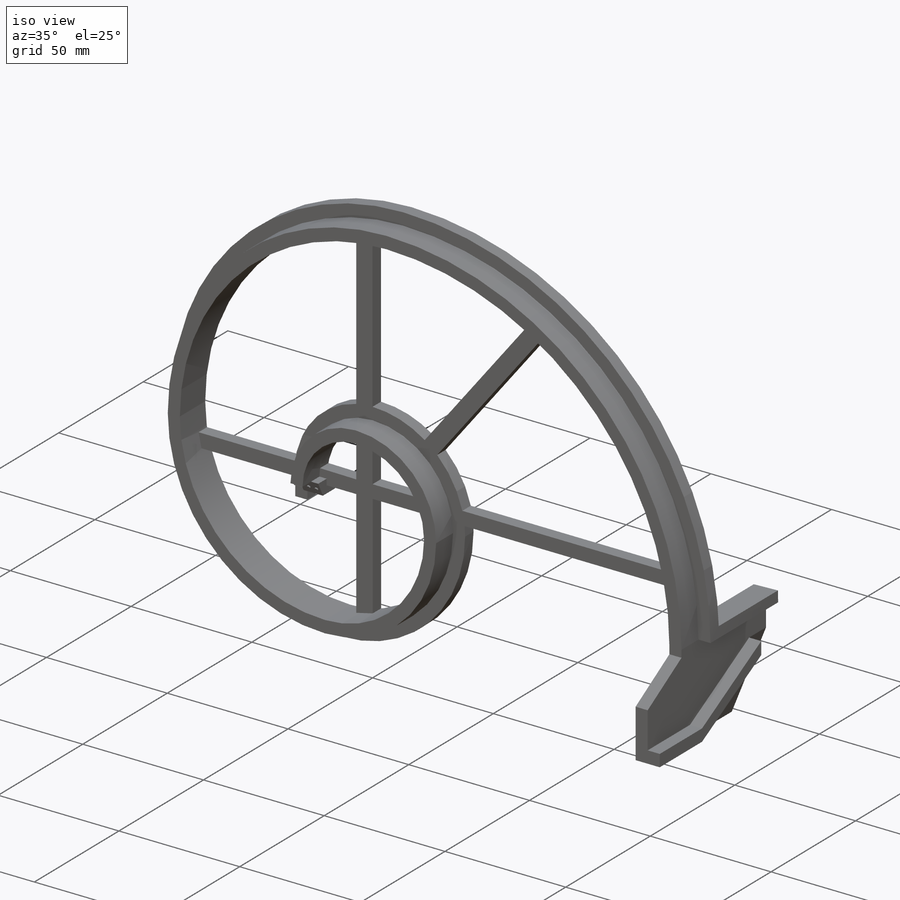
[diagram: iso view]
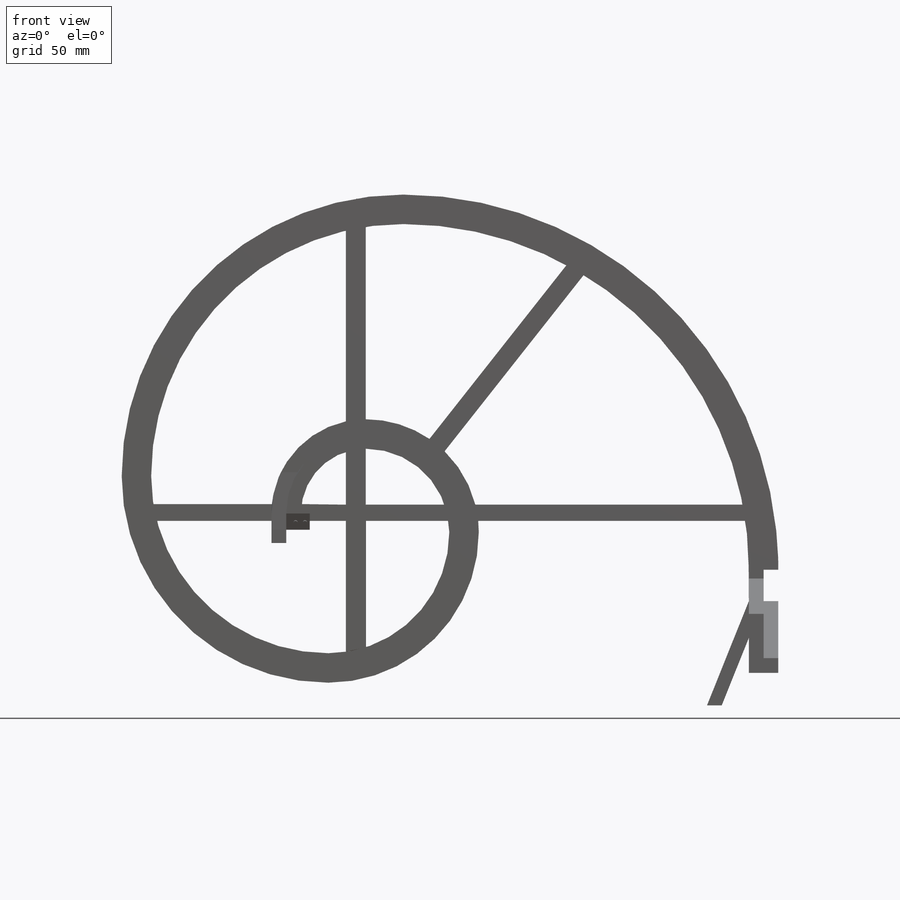
[diagram: front view]
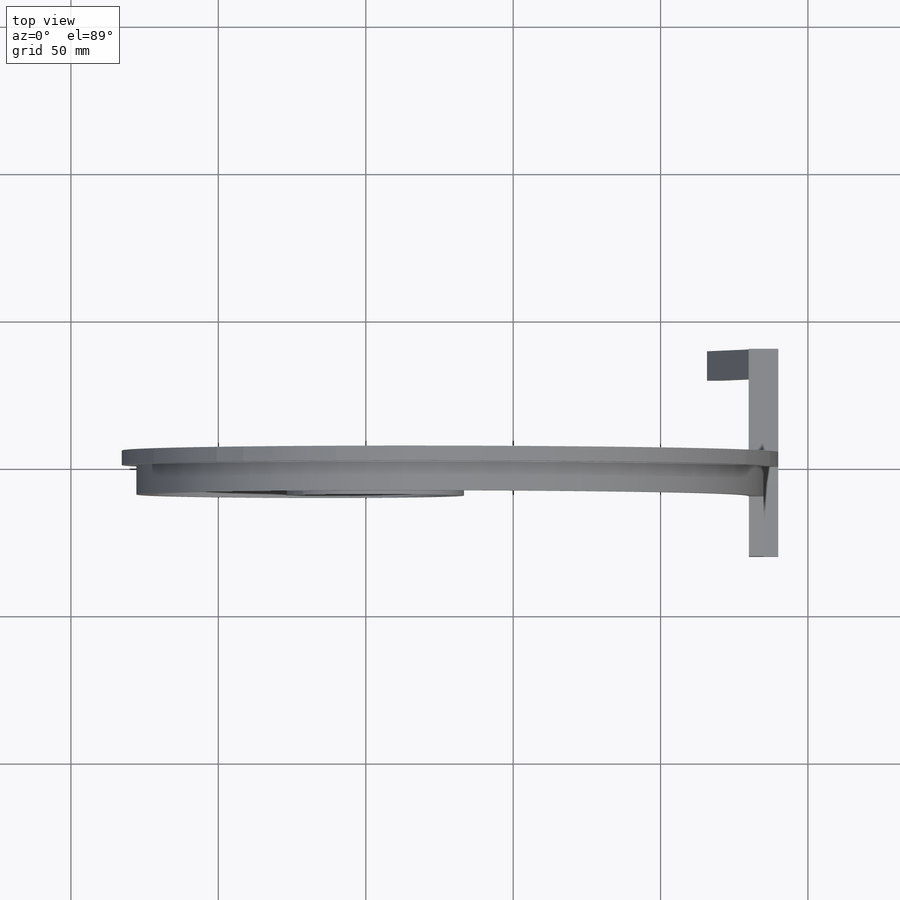
[diagram: top view]
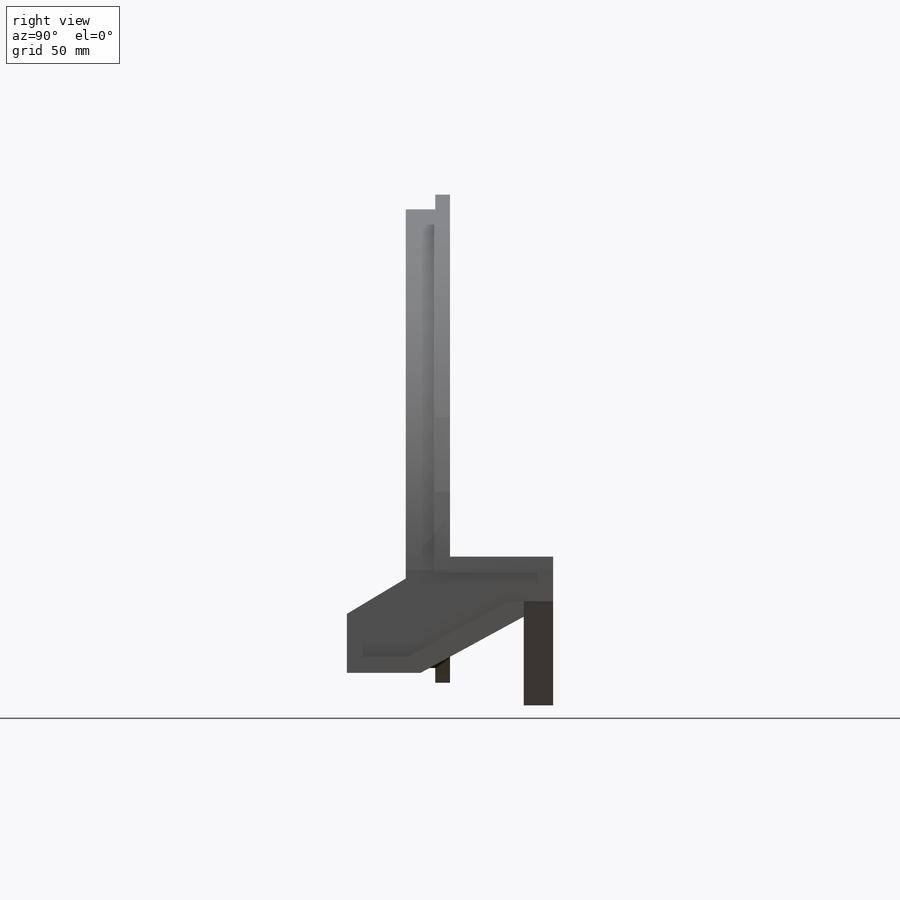
[diagram: right view]
SOLIDWORKS PART (.sldprt)
format: sldprt  version: not decoded by parser v0  size: 497,664 bytes
history: native  units: mm
features: sketch x16, extrude x12, cut_extrude x4, material x1 (+15 scaffold rows collapsed)
feature tree (48):
  scaffold x15  (default folders/planes/origin — collapsed)
  material  "Material <not specified>"
  sketch  "Sketch2"  dims[D1=11.1125mm]
  extrude  "Extrude2"  Depth=10mm
  sketch  "Sketch3"  dims[D1=31.75mm]
  extrude  "Extrude3"  Depth=5mm
  sketch  "Sketch4"
  cut_extrude  "Cut-Extrude1"  Depth=5mm
  sketch  "Sketch5"
  extrude  "Extrude4"  Depth=3mm
  sketch  "Sketch6"
  cut_extrude  "Cut-Extrude2"  Depth=8mm
  sketch  "Sketch7"
  extrude  "Extrude5"  Depth=5mm
  sketch  "Sketch8"
  cut_extrude  "Cut-Extrude3"  Depth=5mm
  sketch  "Sketch9"
  extrude  "Extrude6"  Depth=35mm
  sketch  "Sketch11"
  extrude  "Extrude8"  Depth=25mm
  sketch  "Sketch12"  dims[D1=~2.197377deg]
  extrude  "Extrude9"  Depth=25mm
  sketch  "Sketch16"
  extrude  "Extrude12"  Depth=20mm
  sketch  "Sketch17"
  extrude  "Extrude13"  Depth=5mm
  sketch  "Sketch18"
  cut_extrude  "Cut-Extrude5"  Depth=5mm
  sketch  "Sketch19"
  extrude  "Extrude14"  Depth=10mm
  sketch  "Sketch20"  dims[D1=~60.081515mm]
  extrude  "Extrude19"  Depth=5mm
  sketch  "Sketch21"  dims[D1=1.5875mm]
  extrude  "Extrude20"  Depth=0.5mm
decode coverage: 21 of 32 modeling features carry decoded parameters
note: ~ marks probable driven/reference dimensions
note: suppression state not decoded; provenance and decode notes live in map.json
